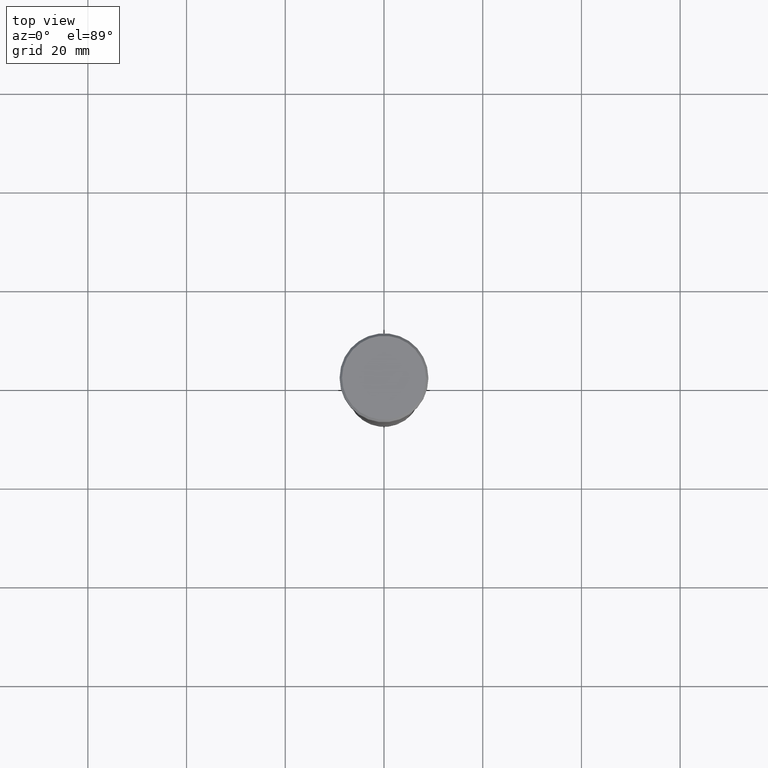
[diagram: clean part render]
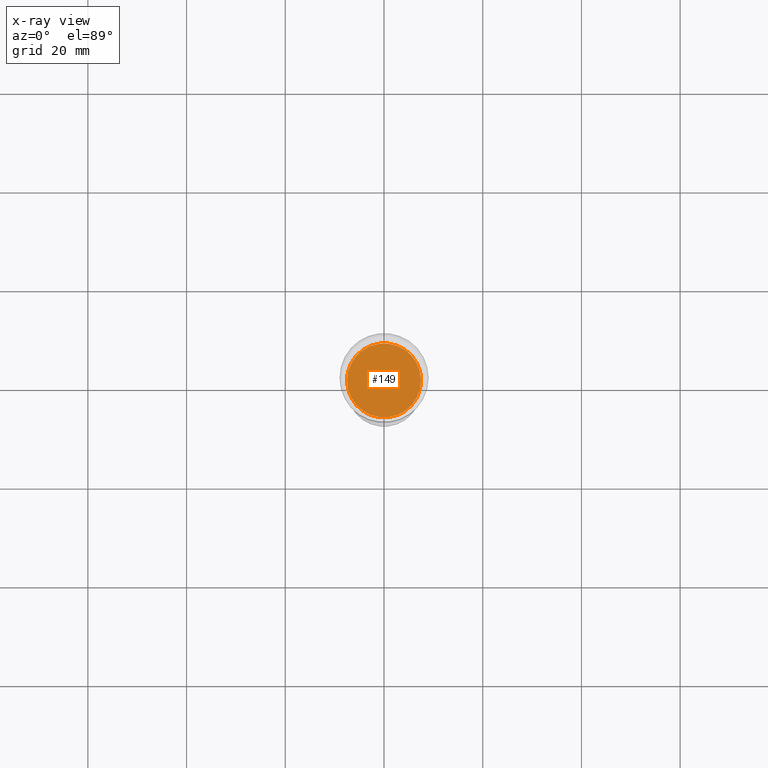
[diagram: x-ray — body ghosted, one internal face saturated and labeled with its STEP entity id]
A machine part, top view, then the same camera in x-ray: the body is ghosted and one INTERNAL B-rep face — a face not visible from any outside direction — is saturated and labeled: STEP entity #149.
In plain terms, the highlighted planar face has unit normal (0, 0, -1).
Its self-contained STEP definition (entity closure, byte-faithful):
#3 = EDGE_CURVE ( 'NONE', #741, #909, #389, .T. ) ;
#5 = DIRECTION ( 'NONE',  ( 0.000000000000000000, 0.000000000000000000, -1.000000000000000000 ) ) ;
#17 = EDGE_CURVE ( 'NONE', #909, #741, #410, .T. ) ;
#18 = FACE_OUTER_BOUND ( 'NONE', #245, .T. ) ;
#89 = PLANE ( 'NONE',  #370 ) ;
#134 = CARTESIAN_POINT ( 'NONE',  ( -7.500000000000000000, 9.184850993605147944E-16, -33.00000000000000000 ) ) ;
#149 = ADVANCED_FACE ( 'NONE', ( #18 ), #89, .T. ) ;
#153 = DIRECTION ( 'NONE',  ( 0.000000000000000000, 0.000000000000000000, -1.000000000000000000 ) ) ;
#245 = EDGE_LOOP ( 'NONE', ( #1031, #879 ) ) ;
#256 = DIRECTION ( 'NONE',  ( -1.000000000000000000, 0.000000000000000000, -0.000000000000000000 ) ) ;
#318 = DIRECTION ( 'NONE',  ( 0.000000000000000000, 0.000000000000000000, -1.000000000000000000 ) ) ;
#334 = DIRECTION ( 'NONE',  ( -1.000000000000000000, 0.000000000000000000, 0.000000000000000000 ) ) ;
#370 = AXIS2_PLACEMENT_3D ( 'NONE', #454, #5, #256 ) ;
#389 = CIRCLE ( 'NONE', #934, 7.500000000000000000 ) ;
#410 = CIRCLE ( 'NONE', #705, 7.500000000000000000 ) ;
#454 = CARTESIAN_POINT ( 'NONE',  ( 0.000000000000000000, 0.000000000000000000, -33.00000000000000000 ) ) ;
#695 = CARTESIAN_POINT ( 'NONE',  ( 7.500000000000000000, 0.000000000000000000, -33.00000000000000000 ) ) ;
#705 = AXIS2_PLACEMENT_3D ( 'NONE', #785, #318, #945 ) ;
#741 = VERTEX_POINT ( 'NONE', #134 ) ;
#785 = CARTESIAN_POINT ( 'NONE',  ( 0.000000000000000000, 0.000000000000000000, -33.00000000000000000 ) ) ;
#879 = ORIENTED_EDGE ( 'NONE', *, *, #3, .T. ) ;
#909 = VERTEX_POINT ( 'NONE', #695 ) ;
#934 = AXIS2_PLACEMENT_3D ( 'NONE', #1132, #153, #334 ) ;
#945 = DIRECTION ( 'NONE',  ( -1.000000000000000000, 0.000000000000000000, 0.000000000000000000 ) ) ;
#1031 = ORIENTED_EDGE ( 'NONE', *, *, #17, .T. ) ;
#1132 = CARTESIAN_POINT ( 'NONE',  ( 0.000000000000000000, 0.000000000000000000, -33.00000000000000000 ) ) ;